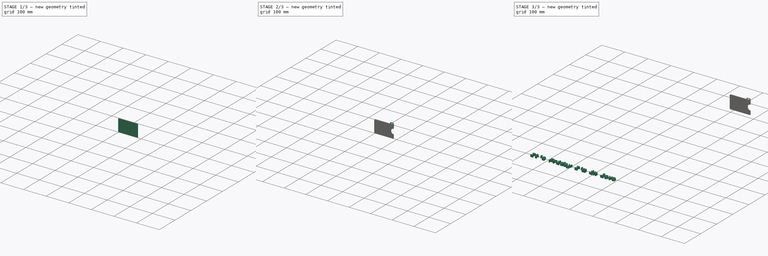
[diagram: build sequence overview — one tinted view per stage of 3, left to right]
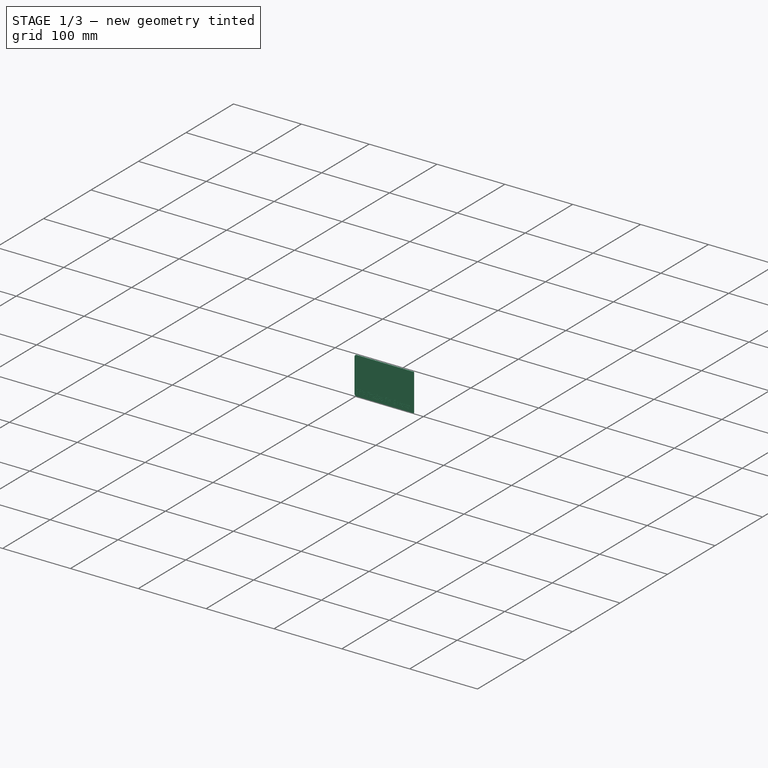
[diagram: stage 1 of 3 — iso view after this stage's code; geometry added in this stage tinted green]
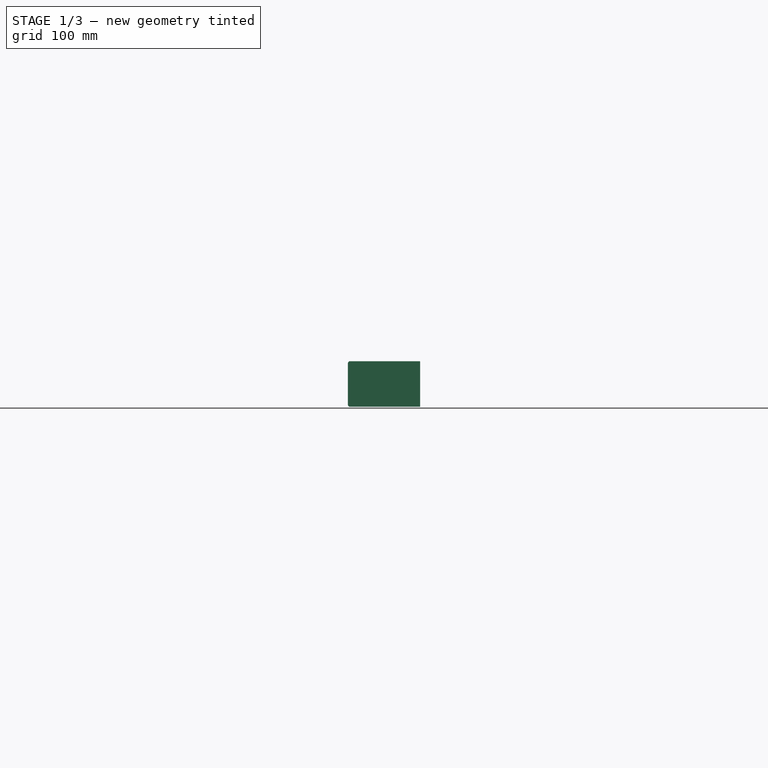
[diagram: stage 1 of 3 — front view after this stage's code; geometry added in this stage tinted green]
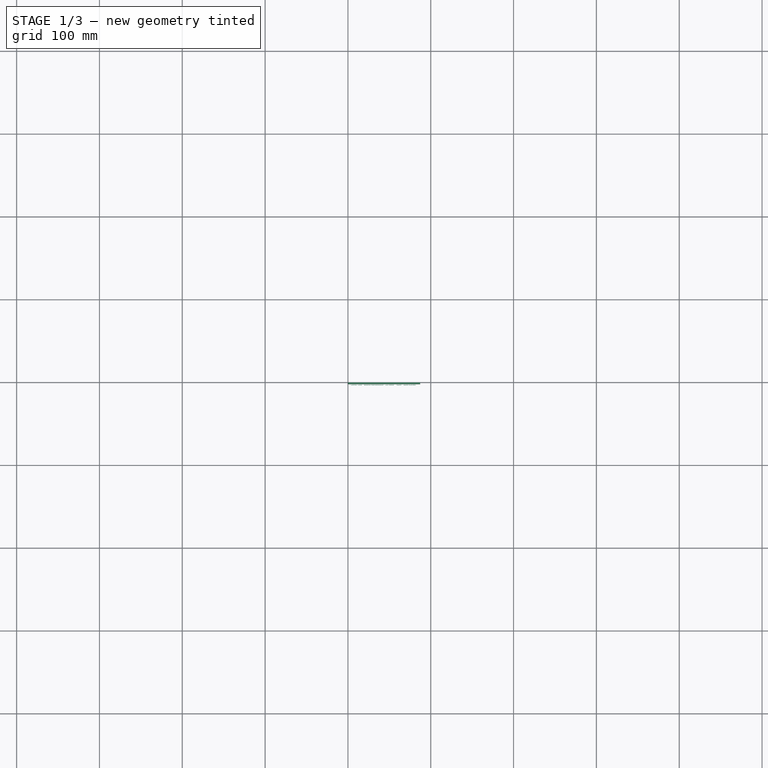
[diagram: stage 1 of 3 — top view after this stage's code; geometry added in this stage tinted green]
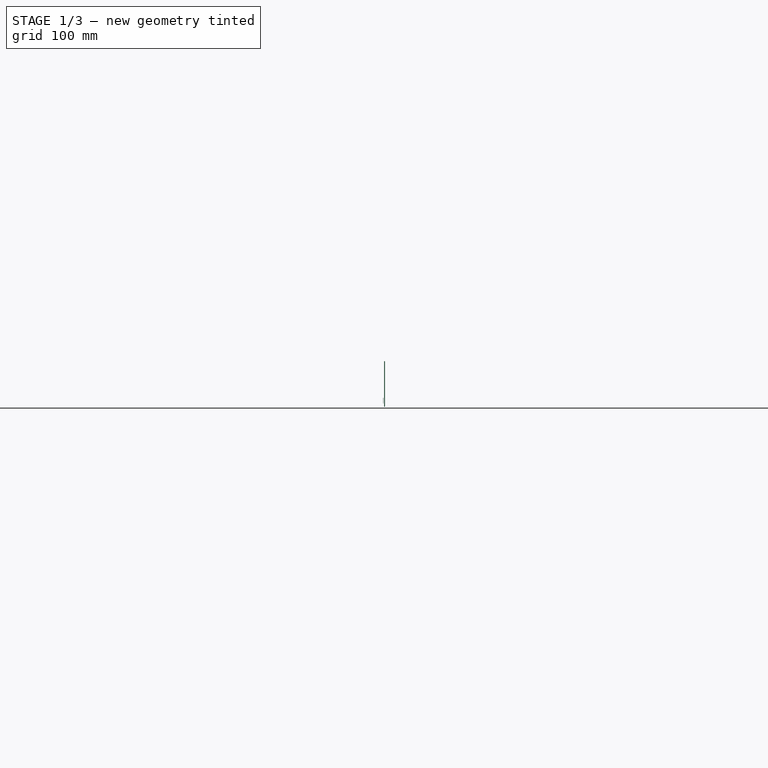
[diagram: stage 1 of 3 — right view after this stage's code; geometry added in this stage tinted green]
FCSTD DOCUMENT  (FreeCAD 0.18R16093 (Git))
Label: cardfob
License: All rights reserved
LicenseURL: http://en.wikipedia.org/wiki/All_rights_reserved
objects: Part::Extrusion×4, Sketcher::SketchObject×2, Part::Part2DObjectPython×2, PartDesign::Body×1, Part::Cut×1, Part::MultiFuse×1
note: 11 computed .brp shape members not serialized (recipe doc carries the construction recipe); baked Part::Feature solids carry a one-line shape summary decoded from their .brp

FEATURE [Part::Extrusion] Extrude002
  Base = -> Sketch
  Dir = (0,-1,-2e-16)
  DirMode = 2
  FaceMakerClass = Part::FaceMakerBullseye
  LengthFwd = 0.95
  LengthRev = 0
  Placement = pos=(0,-1,0) rot=(0,0,1;0rad)
  Solid = true
  Symmetric = false
FEATURE [Part::Part2DObjectPython] ShapeString001  # Draft 2D object (typed FeaturePython)
  FontFile = <userpath>/Schreibtisch/failed attempt.ttf
  Placement = pos=(0,0,0) rot=(1,0,0;1.5708rad)
  Size = 3.6
  String = It's Friday I'm in love
  Tracking = 0
FEATURE [Part::Extrusion] Extrude003
  Base = -> ShapeString001
  Dir = (0,-1,2e-16)
  DirMode = 2
  FaceMakerClass = Part::FaceMakerBullseye
  LengthFwd = 0.4
  LengthRev = 0
  Placement = pos=(3,-2.9,5) rot=(0,0,1;0rad)
  Solid = false
  Symmetric = false
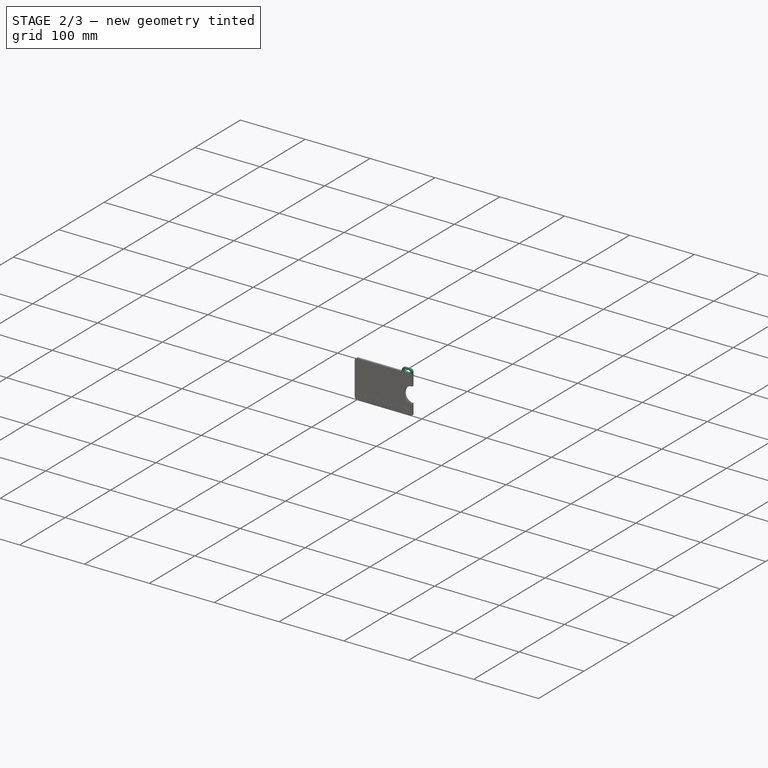
[diagram: stage 2 of 3 — iso view after this stage's code; geometry added in this stage tinted green]
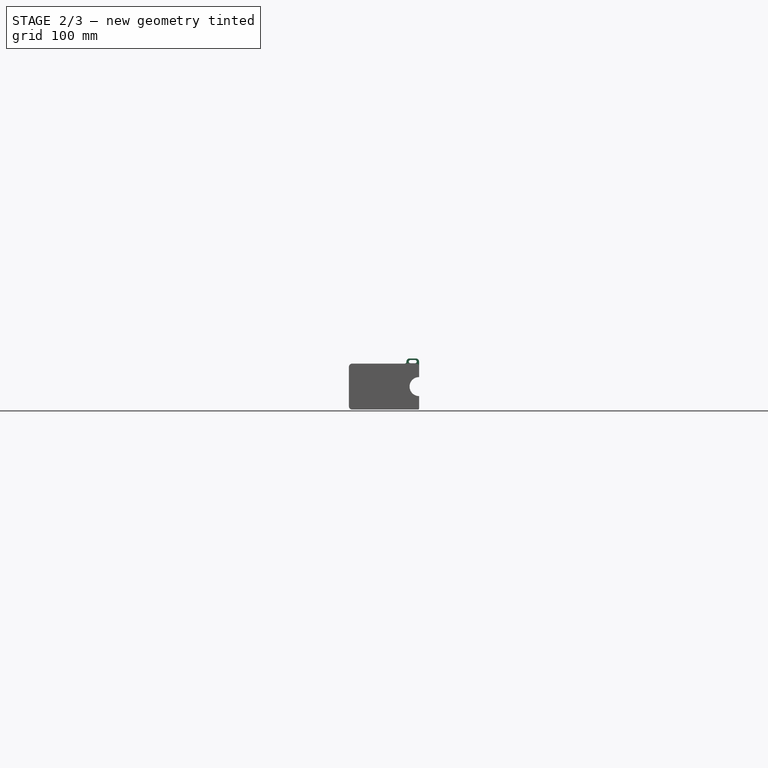
[diagram: stage 2 of 3 — front view after this stage's code; geometry added in this stage tinted green]
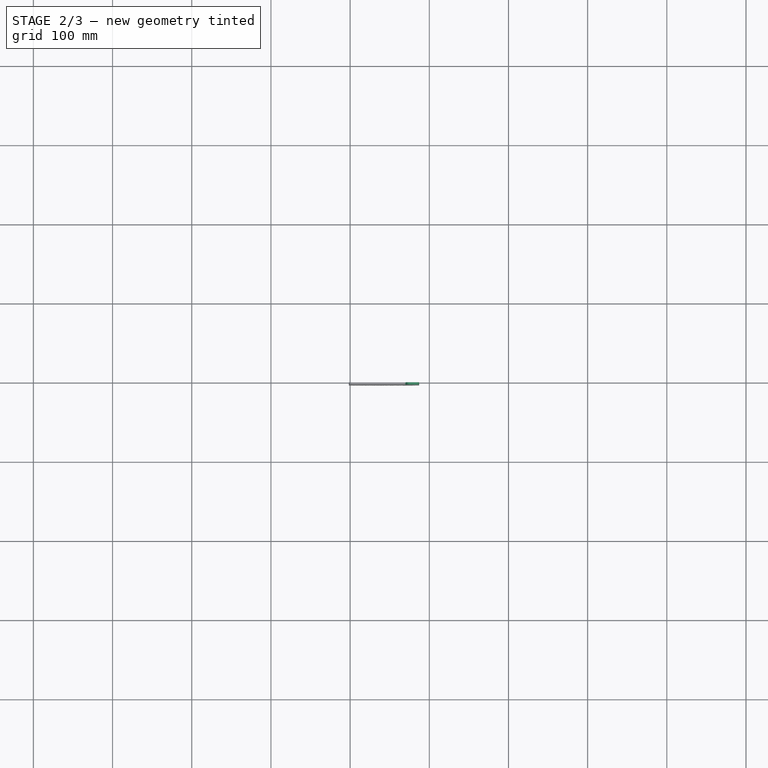
[diagram: stage 2 of 3 — top view after this stage's code; geometry added in this stage tinted green]
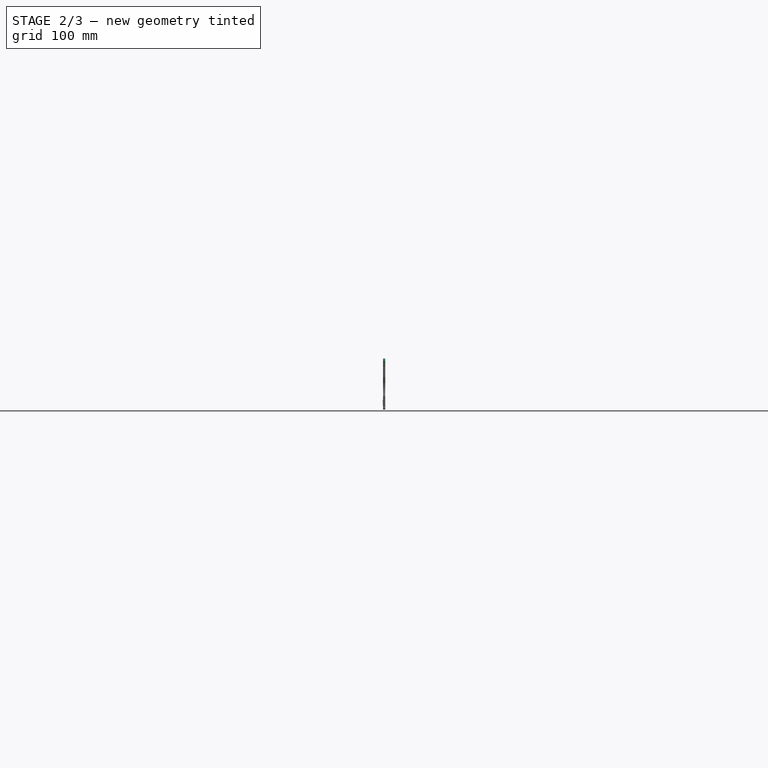
[diagram: stage 2 of 3 — right view after this stage's code; geometry added in this stage tinted green]
FEATURE [Part::Extrusion] Extrude001
  Base = -> Sketch001
  Dir = (0,-1,-2e-16)
  DirMode = 2
  FaceMakerClass = Part::FaceMakerBullseye
  LengthFwd = 2.95
  LengthRev = 0
  Solid = true
  Symmetric = false
  expr: LengthFwd = 2 + 0.95
FEATURE [Part::Cut] Cut
  Base = -> Extrude001
  Tool = -> Extrude002
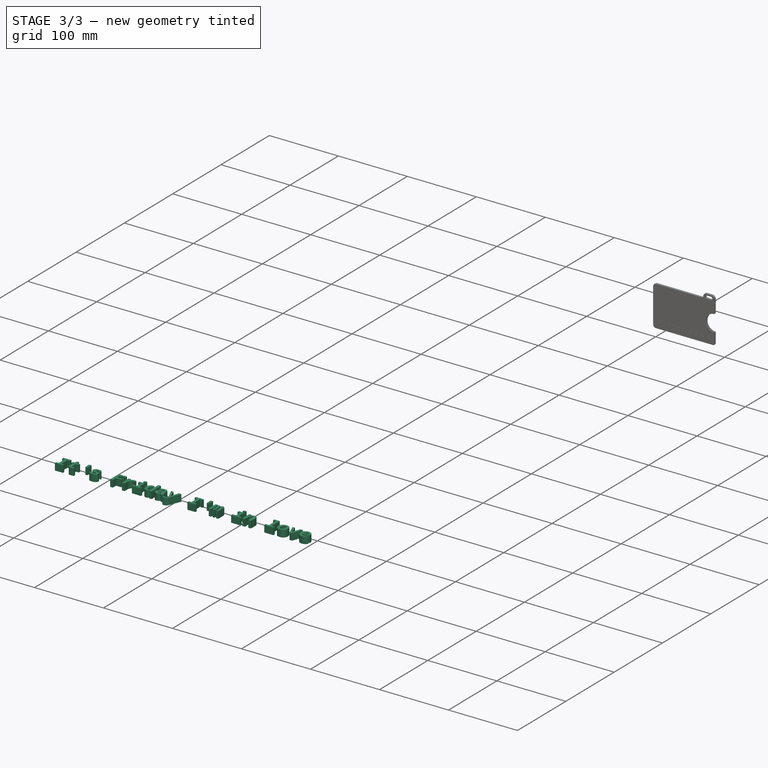
[diagram: stage 3 of 3 — iso view after this stage's code; geometry added in this stage tinted green]
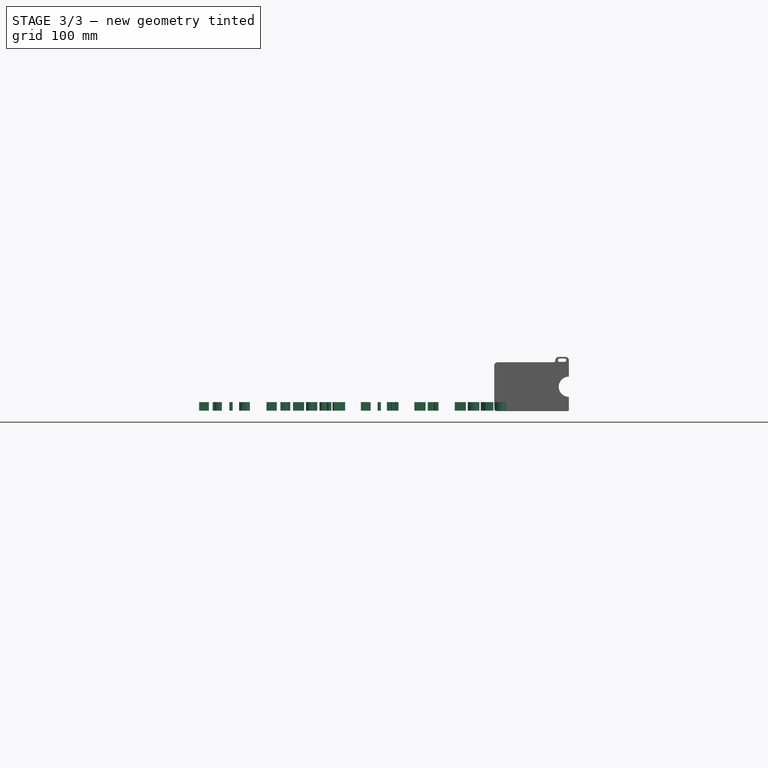
[diagram: stage 3 of 3 — front view after this stage's code; geometry added in this stage tinted green]
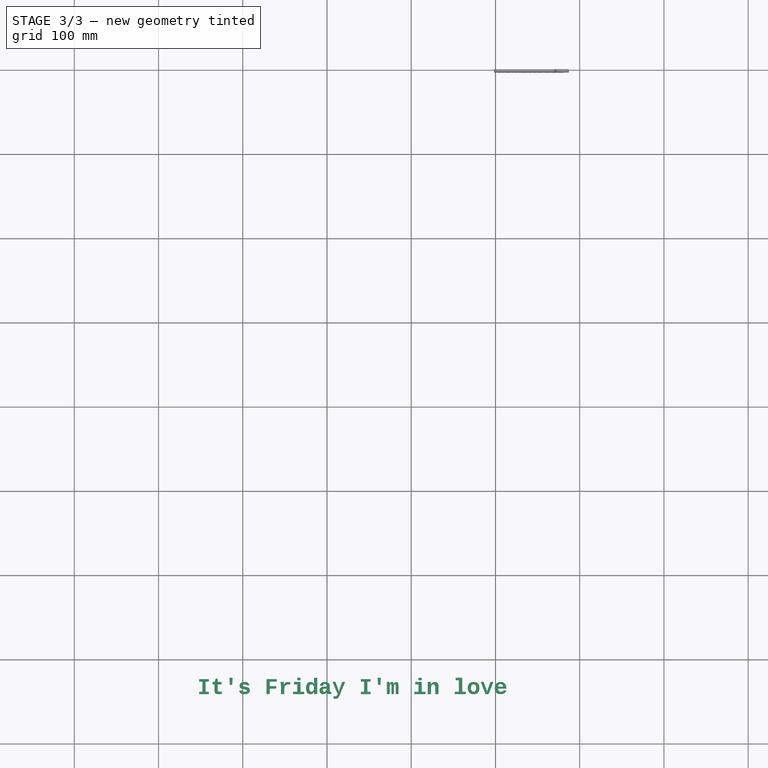
[diagram: stage 3 of 3 — top view after this stage's code; geometry added in this stage tinted green]
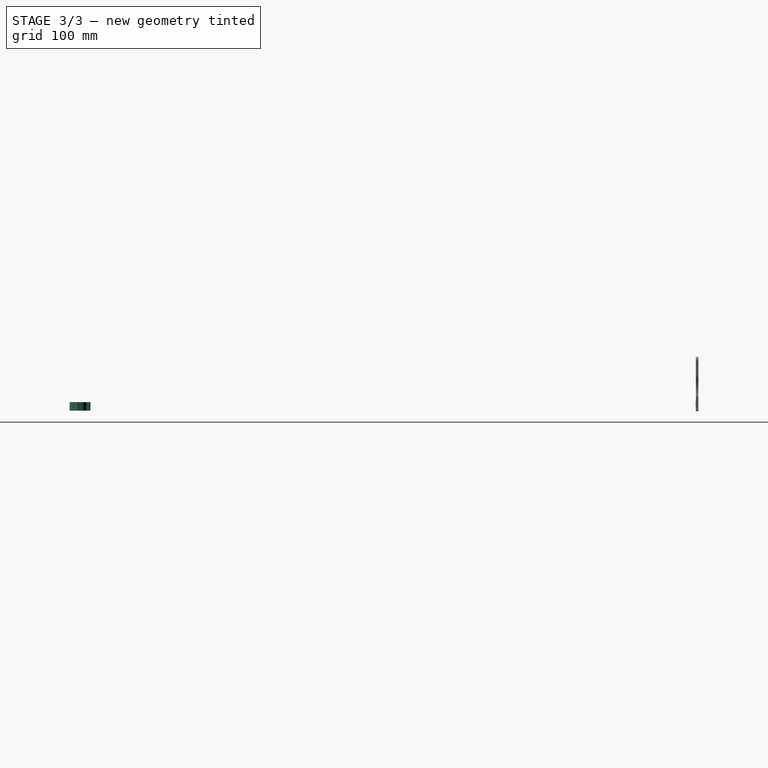
[diagram: stage 3 of 3 — right view after this stage's code; geometry added in this stage tinted green]
FEATURE [Sketcher::SketchObject] Sketch
  AttachmentOffset = pos=(0,0.8,0) rot=(0,0,1;0rad)
  MapMode = 5
  Placement = pos=(0,-2e-16,0.8) rot=(1,0,0;1.5708rad)
  Support = -> [XZ_Plane]
  sketch-geometry (6):
    g0: LineSegment StartX=2.5 StartY=55 StartZ=0 EndX=87.1 EndY=55 EndZ=0
    g1: LineSegment StartX=87.1 StartY=55 StartZ=0 EndX=87.1 EndY=0 EndZ=0
    g2: LineSegment StartX=87.1 StartY=0 StartZ=0 EndX=2.5 EndY=0 EndZ=0
    g3: LineSegment StartX=0 StartY=2.5 StartZ=0 EndX=0 EndY=52.5 EndZ=0
    g4: ArcOfCircle CenterX=2.5 CenterY=52.5 CenterZ=0 NormalX=0 NormalY=0 NormalZ=1 AngleXU=0 Radius=2.5 StartAngle=1.5708 EndAngle=3.14159
    g5: ArcOfCircle CenterX=2.5 CenterY=2.5 CenterZ=0 NormalX=0 NormalY=0 NormalZ=1 AngleXU=0 Radius=2.5 StartAngle=3.14159 EndAngle=4.71239
  constraints (20):
    c: Horizontal(g0)
    c: Coincident(g0,g1)
    c: Vertical(g1)
    c: Coincident(g1,g2)
    c: Horizontal(g2)
    c: Vertical(g3)
    c: Coincident(g4,g3)
    c: Coincident(g4,g0)
    c: Coincident(g5,g2)
    c: Coincident(g5,g3)
    c: Horizontal(g3,g4)
    c: Vertical(g0,g4)
    c: Vertical(g4,g5)
    c: Vertical(g5,g2)
    c: Radius(g4) = 2.5
    c: DistanceX(g3,g0) = 87.1
    c: DistanceY(g1,g0) = 55
    c: Equal(g5,g4)
    c: Horizontal(g2,g-1)
    c: Vertical(g3,g-1)
FEATURE [Sketcher::SketchObject] Sketch001
  ExternalGeometry = -> [Sketch]
  MapMode = 5
  Placement = pos=(0,0,0) rot=(1,0,0;1.5708rad)
  Support = -> [XZ_Plane]
  sketch-geometry (18):
    g0: ArcOfCircle CenterX=76.1 CenterY=59.8 CenterZ=0 NormalX=0 NormalY=0 NormalZ=1 AngleXU=0 Radius=2 StartAngle=1.5708 EndAngle=4.71239
    g1: ArcOfCircle CenterX=82.1 CenterY=59.8 CenterZ=0 NormalX=0 NormalY=0 NormalZ=1 AngleXU=0 Radius=2 StartAngle=4.71239 EndAngle=7.85398
    g2: LineSegment StartX=76.1 StartY=57.8 StartZ=0 EndX=82.1 EndY=57.8 EndZ=0
    g3: LineSegment StartX=76.1 StartY=61.8 StartZ=0 EndX=82.1 EndY=61.8 EndZ=0
    g4: ArcOfCircle CenterX=83.1 CenterY=59.8 CenterZ=0 NormalX=0 NormalY=0 NormalZ=1 AngleXU=0 Radius=4 StartAngle=0 EndAngle=1.5708
    g5: LineSegment StartX=87.1 StartY=59.8 StartZ=0 EndX=87.1 EndY=55.8 EndZ=0
    g6: ArcOfCircle CenterX=75.1 CenterY=59.8 CenterZ=0 NormalX=0 NormalY=0 NormalZ=1 AngleXU=0 Radius=4 StartAngle=1.5708 EndAngle=3.14159
    g7: LineSegment StartX=75.1 StartY=63.8 StartZ=0 EndX=83.1 EndY=63.8 EndZ=0
    g8: ArcOfCircle CenterX=68.6 CenterY=59.8 CenterZ=0 NormalX=0 NormalY=0 NormalZ=1 AngleXU=0 Radius=2.5 StartAngle=4.71239 EndAngle=6.28319
    g9: ArcOfCircle CenterX=2.5 CenterY=53.3 CenterZ=0 NormalX=0 NormalY=0 NormalZ=1 AngleXU=0 Radius=4 StartAngle=1.5708 EndAngle=3.14159
    g10: LineSegment StartX=2.5 StartY=57.3 StartZ=0 EndX=68.6 EndY=57.3 EndZ=0
    g11: ArcOfCircle CenterX=2.5 CenterY=3.3 CenterZ=0 NormalX=0 NormalY=0 NormalZ=1 AngleXU=0 Radius=4 StartAngle=3.14159 EndAngle=4.71239
    g12: LineSegment StartX=-1.5 StartY=53.3 StartZ=0 EndX=-1.5 EndY=3.3 EndZ=0
    g13: LineSegment StartX=2.5 StartY=-0.7 StartZ=0 EndX=85.6 EndY=-0.7 EndZ=0
    g14: ArcOfCircle CenterX=85.6 CenterY=0.8 CenterZ=0 NormalX=0 NormalY=0 NormalZ=1 AngleXU=0 Radius=1.5 StartAngle=4.71239 EndAngle=6.28319
    g15: ArcOfCircle CenterX=87.1 CenterY=28.3 CenterZ=0 NormalX=0 NormalY=0 NormalZ=1 AngleXU=0 Radius=12 StartAngle=1.5708 EndAngle=4.71239
    g16: LineSegment StartX=87.1 StartY=55.8 StartZ=0 EndX=87.1 EndY=40.3 EndZ=0
    g17: LineSegment StartX=87.1 StartY=16.3 StartZ=0 EndX=87.1 EndY=0.8 EndZ=0
  constraints (53):
    c: Tangent(g0,g3) = 1.5708
    c: Tangent(g0,g2) = -1.5708
    c: Tangent(g2,g1) = -1.5708
    c: Tangent(g3,g1) = 1.5708
    c: Horizontal(g2)
    c: Equal(g0,g1)
    c: DistanceY(g1,g1) = 4
    c: DistanceX(g0,g1) = 6
    c: Radius(g4) = 4
    c: Horizontal(g1,g4)
    c: Vertical(g4,g-3)
    c: DistanceY(g-3,g1) = 2
    c: Coincident(g5,g4)
    c: Coincident(g5,g-3)
    c: Equal(g6,g4)
    c: Coincident(g7,g6)
    c: Coincident(g7,g4)
    c: Horizontal(g7)
    c: Tangent(g8,g6) = 1.5708
    c: Coincident(g9,g-4)
    c: Equal(g4,g9)
    c: Coincident(g10,g9)
    c: Coincident(g11,g-5)
    c: Vertical(g9,g9)
    c: Vertical(g11,g11)
    c: Coincident(g12,g9)
    c: Coincident(g12,g11)
    c: Vertical(g12)
    c: Horizontal(g11,g11)
    c: Tangent(g10,g8) = -1.5708
    c: Horizontal(g10)
    c: Horizontal(g6,g0)
    c: Horizontal(g9,g9)
    c: Coincident(g13,g11)
    c: Horizontal(g13)
    c: Coincident(g14,g13)
    c: Coincident(g14,g-3)
    c: Vertical(g13,g14)
    c: Horizontal(g14,g14)
    c: Vertical(g15,g15)
    c: Vertical(g15,g15)
    c: Vertical(g15,g14)
    c: Coincident(g16,g5)
    c: Coincident(g16,g15)
    c: Coincident(g17,g15)
    c: Coincident(g17,g14)
    c: Equal(g17,g16)
    c: Radius(g15) = 12
    c: Vertical(g4,g4)
    c: DistanceX(g1,g4) = 1
    c: Horizontal(g4,g1)
    c: Horizontal(g6,g0)
    c: DistanceX(g6,g0) = 1
FEATURE [PartDesign::Body] Body
  Group = -> [Sketch,Sketch001]
  Origin = -> Origin
FEATURE [Part::Part2DObjectPython] ShapeString  # Draft 2D object (typed FeaturePython)
  FontFile = <path>
  Placement = pos=(-354,-741,0) rot=(0,0,1;0rad)
  Size = 20
  String = It's Friday I'm in love
  Tracking = 0
FEATURE [Part::Extrusion] Extrude
  Base = -> ShapeString
  Dir = (0,0,1)
  DirMode = 2
  FaceMakerClass = Part::FaceMakerBullseye
  LengthFwd = 10
  LengthRev = 0
  Solid = true
  Symmetric = false
FEATURE [Part::MultiFuse] Fusion  label="CardFob"
  Shapes = -> [Extrude003,Cut]
note: 1 file-system path scrubbed to <path> (originals preserved in the JSON sidecar)
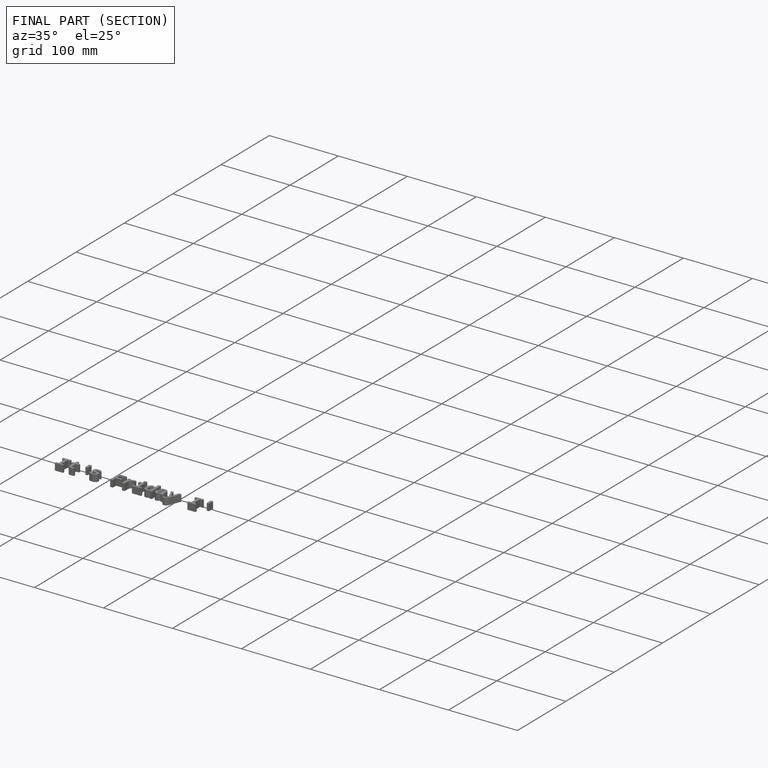
[diagram: finished part — half-section view (interior)]
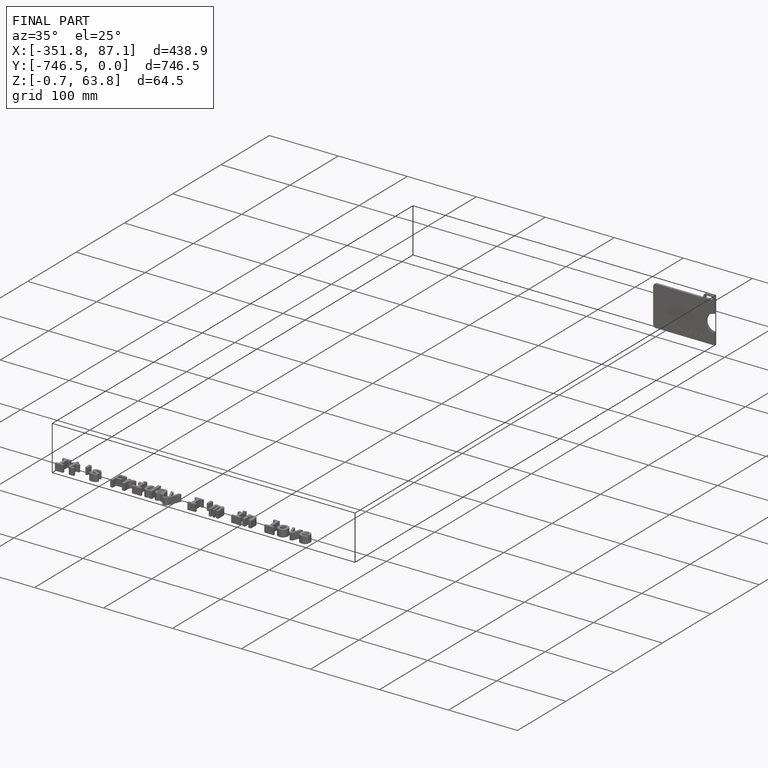
[diagram: finished part — iso view with bounding-box wireframe]
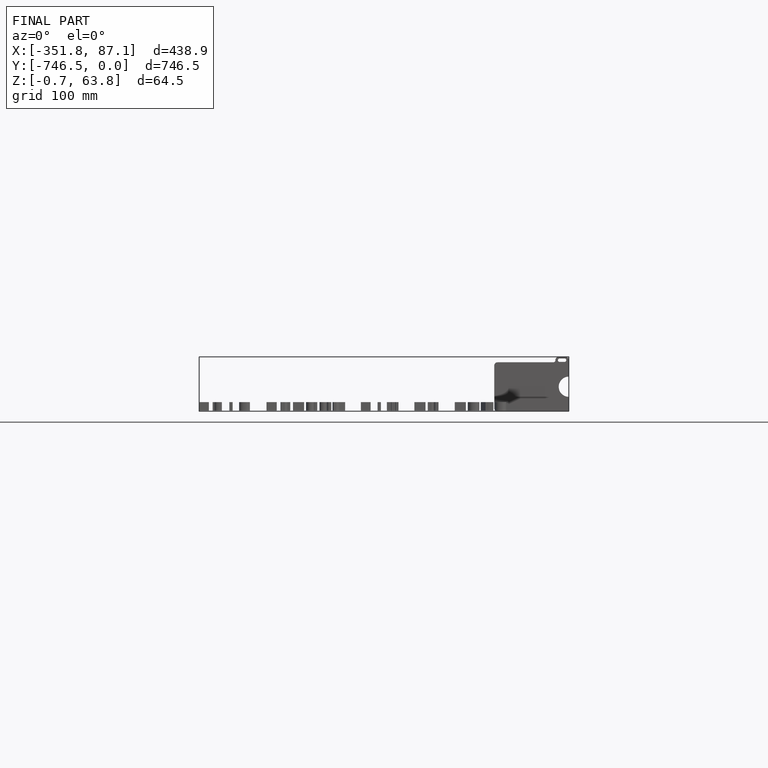
[diagram: finished part — front view with bounding-box wireframe]
